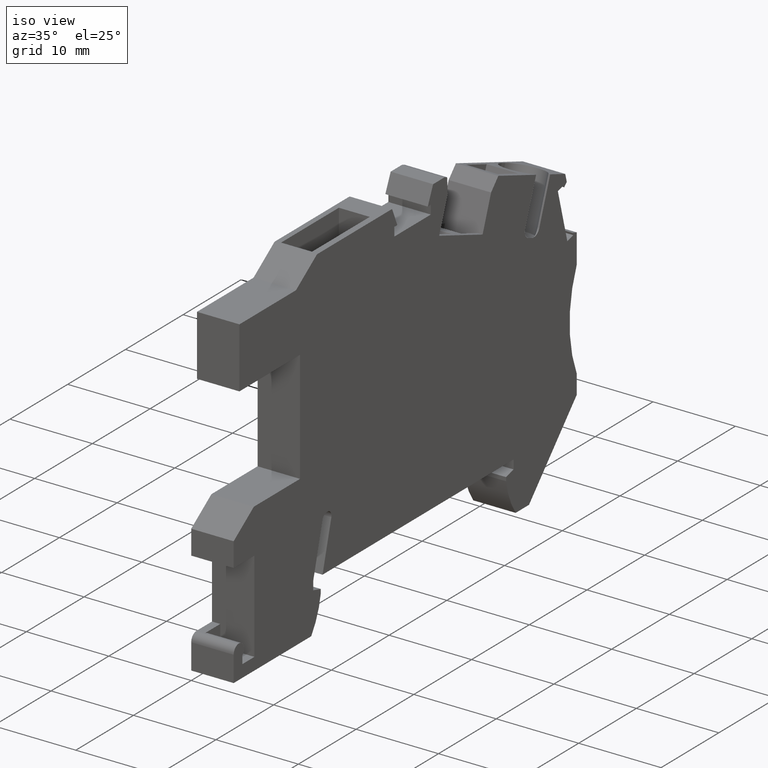
[diagram: clean part render]
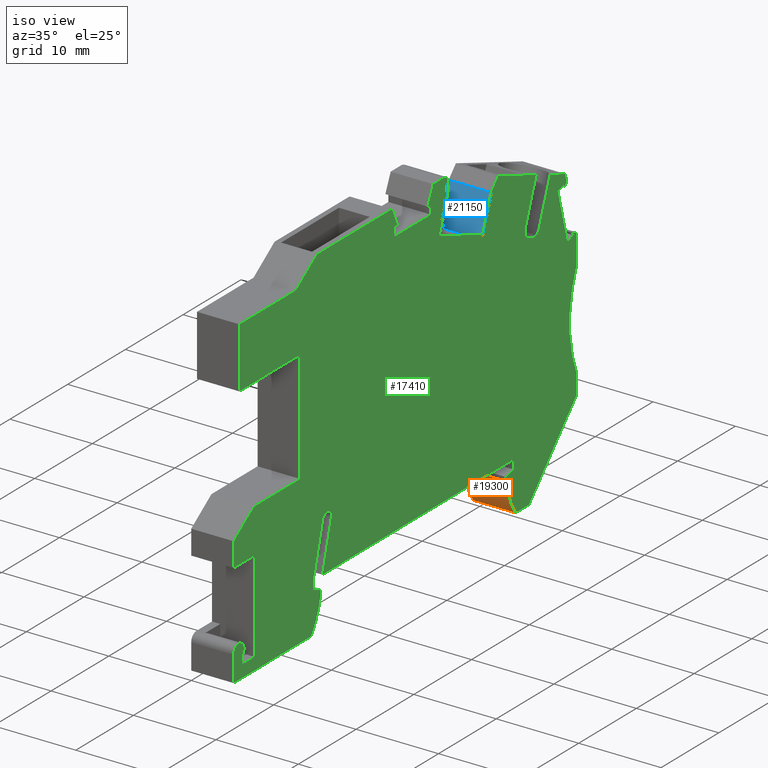
[diagram: same view with three faces highlighted in distinct colors, each labeled with its STEP entity id]
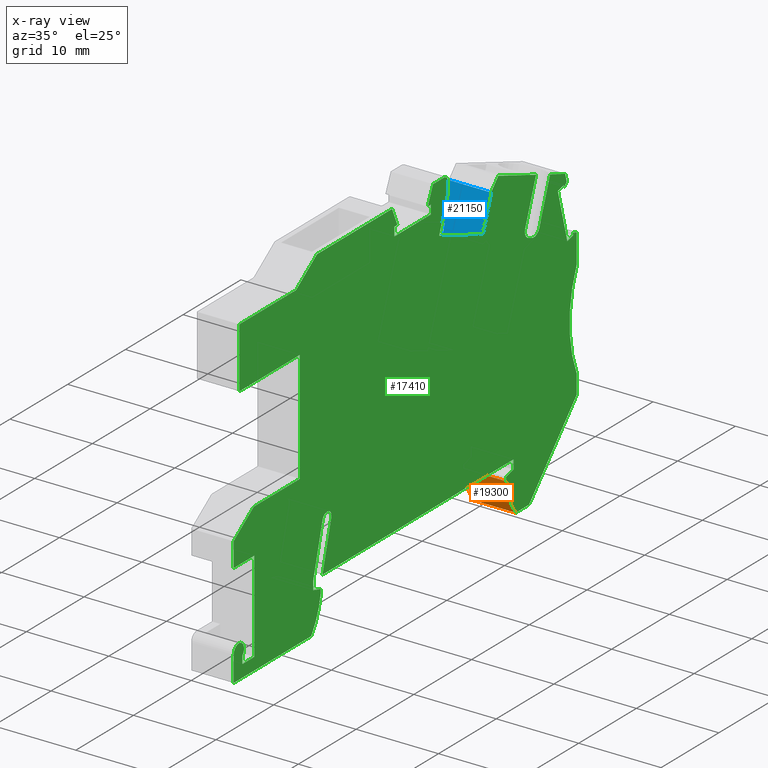
[diagram: x-ray of the same camera — body ghosted, the three highlighted faces saturated]
A machine part, iso view with three faces highlighted in distinct colors.
The next image is the same camera in x-ray (body ghosted, the three faces saturated) — at least one of them is partly hidden behind the body in this view.
Their STEP definitions:

[orange] entity #19300 — the highlighted cylindrical surface (partial cylindrical patch) has radius 9.5 mm, axis along (-1, -0, 0).
#9630=CARTESIAN_POINT('',(51.9625327047195,4.2968278815814,
-5.14999999999817));
#9640=VERTEX_POINT('',#9630);
#9810=CARTESIAN_POINT('',(51.9625327047195,4.2968278815814,
-1.4432899320127E-14));
#9820=VERTEX_POINT('',#9810);
#9850=CARTESIAN_POINT('',(51.9625327047195,4.2968278815814,
2.99999998578915E-6));
#9860=DIRECTION('',(0.,0.,-1.));
#9870=VECTOR('',#9860,1.);
#9880=LINE('',#9850,#9870);
#9890=EDGE_CURVE('',#9820,#9640,#9880,.T.);
#16840=CARTESIAN_POINT('',(54.1087751513737,0.429563033614413,
-1.4432899320127E-14));
#16850=VERTEX_POINT('',#16840);
#16880=CARTESIAN_POINT('',(61.1139937057468,6.84648698559079,
-1.4432899320127E-14));
#16890=DIRECTION('',(0.,0.,-1.));
#16900=DIRECTION('',(-0.992546151641369,-0.121869343404765,0.));
#16910=AXIS2_PLACEMENT_3D('',#16880,#16890,#16900);
#16920=CIRCLE('',#16910,9.499999999999);
#16930=EDGE_CURVE('',#16850,#9820,#16920,.T.);
#19060=CARTESIAN_POINT('',(61.1139937057468,6.84648698559079,
-1.4210854715202E-14));
#19070=DIRECTION('',(0.,0.,-1.));
#19080=DIRECTION('',(-0.992546151641369,-0.121869343404765,0.));
#19090=AXIS2_PLACEMENT_3D('',#19060,#19070,#19080);
#19100=CYLINDRICAL_SURFACE('',#19090,9.499999999999);
#19110=CARTESIAN_POINT('',(54.1087751513737,0.429563033614408,
-1.4210854715202E-14));
#19120=DIRECTION('',(0.,0.,-1.));
#19130=VECTOR('',#19120,1.);
#19140=LINE('',#19110,#19130);
#19150=CARTESIAN_POINT('',(54.1087751513737,0.429563033614408,
-5.1499999999979));
#19160=VERTEX_POINT('',#19150);
#19170=EDGE_CURVE('',#16850,#19160,#19140,.T.);
#19180=ORIENTED_EDGE('',*,*,#19170,.F.);
#19190=CARTESIAN_POINT('',(61.1139937057468,6.84648698559079,
-5.14999999999781));
#19200=DIRECTION('',(0.,0.,-1.));
#19210=DIRECTION('',(-0.992546151641369,-0.121869343404765,0.));
#19220=AXIS2_PLACEMENT_3D('',#19190,#19200,#19210);
#19230=CIRCLE('',#19220,9.499999999999);
#19240=EDGE_CURVE('',#19160,#9640,#19230,.T.);
#19250=ORIENTED_EDGE('',*,*,#19240,.F.);
#19260=ORIENTED_EDGE('',*,*,#9890,.T.);
#19270=ORIENTED_EDGE('',*,*,#16930,.T.);
#19280=EDGE_LOOP('',(#19270,#19260,#19250,#19180));
#19290=FACE_OUTER_BOUND('',#19280,.T.);
#19300=ADVANCED_FACE('',(#19290),#19100,.T.);

[blue] entity #21150 — the highlighted planar face has unit normal (0, -0.9397, 0.342).
#10580=CARTESIAN_POINT('',(41.738871458043,20.502719257122,
-0.574999999998905));
#10590=VERTEX_POINT('',#10580);
#10620=CARTESIAN_POINT('',(44.4382841101739,32.1951600345438,
-0.57499999999905));
#10630=DIRECTION('',(-0.224951054344241,-0.974370064785149,
1.21223859372387E-14));
#10640=VECTOR('',#10630,1.);
#10650=LINE('',#10620,#10640);
#10660=CARTESIAN_POINT('',(44.4382841101583,32.1951600345474,
-0.57499999999905));
#10670=VERTEX_POINT('',#10660);
#10680=EDGE_CURVE('',#10670,#10590,#10650,.T.);
#13390=CARTESIAN_POINT('',(41.7388714580432,20.5027192571219,
-4.5749999999989));
#13400=VERTEX_POINT('',#13390);
#13430=CARTESIAN_POINT('',(41.738871458043,20.502719257122,
1.11954889803201E-12));
#13440=DIRECTION('',(-4.59041454192093E-14,2.30390615017623E-14,1.));
#13450=VECTOR('',#13440,1.);
#13460=LINE('',#13430,#13450);
#13470=EDGE_CURVE('',#13400,#10590,#13460,.T.);
#15590=CARTESIAN_POINT('',(44.4382841101605,32.1951600345564,
-1.4432899320127E-14));
#15600=VERTEX_POINT('',#15590);
#15630=CARTESIAN_POINT('',(37.0054457499842,0.,-1.4432899320127E-14));
#15640=DIRECTION('',(0.224951054343866,0.974370064785235,0.));
#15650=VECTOR('',#15640,1.);
#15660=LINE('',#15630,#15650);
#15670=CARTESIAN_POINT('',(45.4055736438387,36.3849513131316,
-1.4432899320127E-14));
#15680=VERTEX_POINT('',#15670);
#15690=EDGE_CURVE('',#15600,#15680,#15660,.T.);
#19980=CARTESIAN_POINT('',(44.4382841101741,32.1951600345437,
-4.57499999999904));
#19990=DIRECTION('',(-0.224951054344241,-0.974370064785149,
1.21223859372387E-14));
#20000=VECTOR('',#19990,1.);
#20010=LINE('',#19980,#20000);
#20020=CARTESIAN_POINT('',(44.4382841101583,32.1951600345473,
-4.57499999999904));
#20030=VERTEX_POINT('',#20020);
#20040=EDGE_CURVE('',#20030,#13400,#20010,.T.);
#20800=CARTESIAN_POINT('',(41.3682988384536,18.8975928957509,
-1.4210854715202E-14));
#20810=DIRECTION('',(-0.974370064785235,0.224951054343866,0.));
#20820=DIRECTION('',(0.224951054343866,0.974370064785235,0.));
#20830=AXIS2_PLACEMENT_3D('',#20800,#20810,#20820);
#20840=PLANE('',#20830);
#20850=CARTESIAN_POINT('',(37.0054457499842,0.,-5.14999999999876));
#20860=DIRECTION('',(0.224951054343866,0.974370064785235,
-1.21291865440298E-14));
#20870=VECTOR('',#20860,1.);
#20880=LINE('',#20850,#20870);
#20890=CARTESIAN_POINT('',(44.4382841101605,32.1951600345564,
-5.14999999999916));
#20900=VERTEX_POINT('',#20890);
#20910=CARTESIAN_POINT('',(45.4055736438386,36.3849513131314,
-5.14999999999921));
#20920=VERTEX_POINT('',#20910);
#20930=EDGE_CURVE('',#20900,#20920,#20880,.T.);
#20940=ORIENTED_EDGE('',*,*,#20930,.F.);
#20950=CARTESIAN_POINT('',(45.4055736438386,36.3849513131314,
-3.82500000000001));
#20960=DIRECTION('',(0.,0.,1.));
#20970=VECTOR('',#20960,1.);
#20980=LINE('',#20950,#20970);
#20990=EDGE_CURVE('',#20920,#15680,#20980,.T.);
#21000=ORIENTED_EDGE('',*,*,#20990,.F.);
#21010=ORIENTED_EDGE('',*,*,#15690,.T.);
#21020=CARTESIAN_POINT('',(44.4382841101604,32.1951600345564,0.));
#21030=DIRECTION('',(0.,0.,-1.));
#21040=VECTOR('',#21030,1.);
#21050=LINE('',#21020,#21040);
#21060=EDGE_CURVE('',#15600,#10670,#21050,.T.);
#21070=ORIENTED_EDGE('',*,*,#21060,.F.);
#21080=ORIENTED_EDGE('',*,*,#10680,.F.);
#21090=ORIENTED_EDGE('',*,*,#13470,.T.);
#21100=ORIENTED_EDGE('',*,*,#20040,.T.);
#21110=EDGE_CURVE('',#20030,#20900,#21050,.T.);
#21120=ORIENTED_EDGE('',*,*,#21110,.F.);
#21130=EDGE_LOOP('',(#21120,#21100,#21090,#21080,#21070,#21010,#21000,
#20940));
#21140=FACE_OUTER_BOUND('',#21130,.T.);
#21150=ADVANCED_FACE('',(#21140),#20840,.T.);

[green] entity #17410 — the highlighted planar face has unit normal (1, 0, -0).
#680=CARTESIAN_POINT('',(19.4454516024276,8.27066819740167,
-1.4432899320127E-14));
#690=VERTEX_POINT('',#680);
#720=CARTESIAN_POINT('',(20.2376660574208,8.15932971663343,
-1.4432899320127E-14));
#730=DIRECTION('',(0.,0.,1.));
#740=DIRECTION('',(1.,0.,0.));
#750=AXIS2_PLACEMENT_3D('',#720,#730,#740);
#760=CIRCLE('',#750,0.8);
#770=CARTESIAN_POINT('',(20.1401705826967,8.95336663794648,
-1.4432899320127E-14));
#780=VERTEX_POINT('',#770);
#790=EDGE_CURVE('',#780,#690,#760,.T.);
#1630=CARTESIAN_POINT('',(1.85975388122069,33.2566976009745,
-1.4432899320127E-14));
#1640=VERTEX_POINT('',#1630);
#1670=CARTESIAN_POINT('',(5.94316289323702,0.,-1.4432899320127E-14));
#1680=DIRECTION('',(-0.121869343405147,0.992546151641322,0.));
#1690=VECTOR('',#1680,1.);
#1700=LINE('',#1670,#1690);
#1710=CARTESIAN_POINT('',(2.75549355524854,25.9614833864106,
-1.4432899320127E-14));
#1720=VERTEX_POINT('',#1710);
#1730=EDGE_CURVE('',#1720,#1640,#1700,.T.);
#1960=CARTESIAN_POINT('',(0.,33.4766904096144,-1.4432899320127E-14));
#1970=DIRECTION('',(-0.992546151641322,-0.121869343405147,0.));
#1980=VECTOR('',#1970,1.);
#1990=LINE('',#1960,#1980);
#2000=CARTESIAN_POINT('',(34.7208337772103,37.739872739132,
-1.4432899320127E-14));
#2010=VERTEX_POINT('',#2000);
#2020=CARTESIAN_POINT('',(34.1968701852491,37.6755380995639,
-1.4432899320127E-14));
#2030=VERTEX_POINT('',#2020);
#2040=EDGE_CURVE('',#2010,#2030,#1990,.T.);
#2470=CARTESIAN_POINT('',(63.5347758791042,10.5659563601578,
-1.4432899320127E-14));
#2480=VERTEX_POINT('',#2470);
#2530=CARTESIAN_POINT('',(64.8321121913054,0.,-1.4432899320127E-14));
#2540=DIRECTION('',(0.121869343405147,-0.992546151641322,0.));
#2550=VECTOR('',#2540,1.);
#2560=LINE('',#2530,#2550);
#2570=CARTESIAN_POINT('',(63.2559507241477,12.836805014957,
-1.4432899320127E-14));
#2580=VERTEX_POINT('',#2570);
#2590=EDGE_CURVE('',#2580,#2480,#2560,.T.);
#2940=CARTESIAN_POINT('',(28.9669429600424,37.0333837816599,
-1.4432899320127E-14));
#2950=VERTEX_POINT('',#2940);
#3000=CARTESIAN_POINT('',(50.9761572099248,0.,-1.4432899320127E-14));
#3010=DIRECTION('',(-0.510892985900413,0.85964432002879,0.));
#3020=VECTOR('',#3010,1.);
#3030=LINE('',#3000,#3020);
#3040=CARTESIAN_POINT('',(27.7922503537223,39.0099578483857,
-1.4432899320127E-14));
#3050=VERTEX_POINT('',#3040);
#3060=EDGE_CURVE('',#2950,#3050,#3030,.T.);
#3410=CARTESIAN_POINT('',(6.92003386756381,-3.85322110628908,
-1.4432899320127E-14));
#3420=VERTEX_POINT('',#3410);
#3590=CARTESIAN_POINT('',(9.00438078600889,-3.5972954851393,
-1.4432899320127E-14));
#3600=VERTEX_POINT('',#3590);
#3630=CARTESIAN_POINT('',(0.,-4.70289442614842,-1.4432899320127E-14));
#3640=DIRECTION('',(-0.992546151641369,-0.121869343404765,0.));
#3650=VECTOR('',#3640,1.);
#3660=LINE('',#3630,#3650);
#3670=EDGE_CURVE('',#3600,#3420,#3660,.T.);
#3980=CARTESIAN_POINT('',(61.7935186032859,24.7473588346529,
-1.4432899320127E-14));
#3990=VERTEX_POINT('',#3980);
#4020=CARTESIAN_POINT('',(64.8321121913054,0.,-1.4432899320127E-14));
#4030=DIRECTION('',(0.121869343405147,-0.992546151641322,0.));
#4040=VECTOR('',#4030,1.);
#4050=LINE('',#4020,#4040);
#4060=CARTESIAN_POINT('',(61.3659941005762,28.2292664911685,
-1.4432899320127E-14));
#4070=VERTEX_POINT('',#4060);
#4080=EDGE_CURVE('',#4070,#3990,#4050,.T.);
#4350=CARTESIAN_POINT('',(53.1553472271283,5.24929494933183,
-1.4432899320127E-14));
#4360=VERTEX_POINT('',#4350);
#4530=CARTESIAN_POINT('',(53.0212909493828,6.34109571613718,
-1.4432899320127E-14));
#4540=VERTEX_POINT('',#4530);
#4570=CARTESIAN_POINT('',(53.7998796025319,0.,-1.4432899320127E-14));
#4580=DIRECTION('',(-0.121869343405147,0.992546151641322,0.));
#4590=VECTOR('',#4580,1.);
#4600=LINE('',#4570,#4590);
#4610=EDGE_CURVE('',#4360,#4540,#4600,.T.);
#4780=CARTESIAN_POINT('',(0.,35.5974985922003,-1.4432899320127E-14));
#4790=DIRECTION('',(0.992546151641322,0.121869343405147,0.));
#4800=VECTOR('',#4790,1.);
#4810=LINE('',#4780,#4800);
#4820=CARTESIAN_POINT('',(14.8905715021893,37.4258308756899,
-1.4432899320127E-14));
#4830=VERTEX_POINT('',#4820);
#4840=EDGE_CURVE('',#4830,#3050,#4810,.T.);
#5560=CARTESIAN_POINT('',(3.7190388891674,9.90852733978212,
-1.4432899320127E-14));
#5570=VERTEX_POINT('',#5560);
#5720=CARTESIAN_POINT('',(6.89428200466091,12.7675290826013,
-1.4432899320127E-14));
#5730=VERTEX_POINT('',#5720);
#5760=CARTESIAN_POINT('',(0.,6.55988968307486,-1.4432899320127E-14));
#5770=DIRECTION('',(0.743144825477395,0.669130606358858,0.));
#5780=VECTOR('',#5770,1.);
#5790=LINE('',#5760,#5780);
#5800=EDGE_CURVE('',#5570,#5730,#5790,.T.);
#6110=CARTESIAN_POINT('',(58.4013126977542,33.9511437820972,
-1.4432899320127E-14));
#6120=VERTEX_POINT('',#6110);
#6150=CARTESIAN_POINT('',(72.1184651827974,0.,-1.4432899320127E-14));
#6160=DIRECTION('',(0.374606593415343,-0.927183854567017,0.));
#6170=VECTOR('',#6160,1.);
#6180=LINE('',#6150,#6170);
#6190=CARTESIAN_POINT('',(58.5033209280686,33.6986645523051,
-1.4432899320127E-14));
#6200=VERTEX_POINT('',#6190);
#6210=EDGE_CURVE('',#6120,#6200,#6180,.T.);
#6440=CARTESIAN_POINT('',(72.6900885964576,0.,-1.4432899320127E-14));
#6450=DIRECTION('',(0.374606593416301,-0.92718385456663,0.));
#6460=VECTOR('',#6450,1.);
#6470=LINE('',#6440,#6460);
#6480=CARTESIAN_POINT('',(58.5067372954408,35.1050263424892,
-1.4432899320127E-14));
#6490=VERTEX_POINT('',#6480);
#6500=CARTESIAN_POINT('',(58.8801003856887,34.1809202662668,
-1.4432899320127E-14));
#6510=VERTEX_POINT('',#6500);
#6520=EDGE_CURVE('',#6490,#6510,#6470,.T.);
#7030=CARTESIAN_POINT('',(14.8346512177917,13.7424838298426,
-1.4432899320127E-14));
#7040=VERTEX_POINT('',#7030);
#7070=CARTESIAN_POINT('',(0.,11.9210176939183,-1.4432899320127E-14));
#7080=DIRECTION('',(0.992546151641322,0.121869343405147,0.));
#7090=VECTOR('',#7080,1.);
#7100=LINE('',#7070,#7090);
#7110=EDGE_CURVE('',#5730,#7040,#7100,.T.);
#7330=CARTESIAN_POINT('',(28.442979368079,36.9690491420914,
-1.4432899320127E-14));
#7340=VERTEX_POINT('',#7330);
#7510=CARTESIAN_POINT('',(28.5733795655224,35.9070247598364,
-1.4432899320127E-14));
#7520=VERTEX_POINT('',#7510);
#7550=CARTESIAN_POINT('',(32.9822078339886,0.,-1.4432899320127E-14));
#7560=DIRECTION('',(-0.121869343405147,0.992546151641322,0.));
#7570=VECTOR('',#7560,1.);
#7580=LINE('',#7550,#7570);
#7590=EDGE_CURVE('',#7520,#7340,#7580,.T.);
#7840=CARTESIAN_POINT('',(76.1699882756172,20.4675083979509,
-1.4210854715202E-14));
#7850=DIRECTION('',(0.,0.,1.));
#7860=DIRECTION('',(0.992546151641322,0.121869343405147,0.));
#7870=AXIS2_PLACEMENT_3D('',#7840,#7850,#7860);
#7880=CIRCLE('',#7870,15.);
#7890=EDGE_CURVE('',#3990,#2580,#7880,.T.);
#8160=CARTESIAN_POINT('',(39.3547074800161,0.,-1.4432899320127E-14));
#8170=DIRECTION('',(0.121869343405147,-0.992546151641322,0.));
#8180=VECTOR('',#8170,1.);
#8190=LINE('',#8160,#8180);
#8200=CARTESIAN_POINT('',(34.851233974654,36.6778483568737,
-1.4432899320127E-14));
#8210=VERTEX_POINT('',#8200);
#8220=EDGE_CURVE('',#2010,#8210,#8190,.T.);
#8450=CARTESIAN_POINT('',(0.,-0.169100211587931,-1.4432899320127E-14));
#8460=DIRECTION('',(-0.992546151641322,-0.121869343405147,0.));
#8470=VECTOR('',#8460,1.);
#8480=LINE('',#8450,#8470);
#8490=CARTESIAN_POINT('',(20.1680133300548,2.30722044942677,
-1.4432899320127E-14));
#8500=VERTEX_POINT('',#8490);
#8510=EDGE_CURVE('',#4540,#8500,#8480,.T.);
#8960=CARTESIAN_POINT('',(20.9919967246766,8.17016694726421,
-1.4432899320127E-14));
#8970=VERTEX_POINT('',#8960);
#9000=CARTESIAN_POINT('',(19.8437546422497,0.,-1.4432899320127E-14));
#9010=DIRECTION('',(0.139173100960126,0.990268068741562,0.));
#9020=VECTOR('',#9010,1.);
#9030=LINE('',#9000,#9020);
#9040=EDGE_CURVE('',#8500,#8970,#9030,.T.);
#9210=CARTESIAN_POINT('',(0.,6.48046463644048,-1.4432899320127E-14));
#9220=DIRECTION('',(0.992546151641322,0.121869343405147,0.));
#9230=VECTOR('',#9220,1.);
#9240=LINE('',#9210,#9230);
#9250=CARTESIAN_POINT('',(20.213500536174,8.96237042408523,
-1.4432899320127E-14));
#9260=VERTEX_POINT('',#9250);
#9270=EDGE_CURVE('',#780,#9260,#9240,.T.);
#9730=CARTESIAN_POINT('',(51.9074884597862,4.7451272811874,
-1.4432899320127E-14));
#9740=VERTEX_POINT('',#9730);
#9770=CARTESIAN_POINT('',(52.4901168294319,0.,-1.4432899320127E-14));
#9780=DIRECTION('',(-0.121869343404462,0.992546151641406,0.));
#9790=VECTOR('',#9780,1.);
#9800=LINE('',#9770,#9790);
#9810=CARTESIAN_POINT('',(51.9625327047195,4.2968278815814,
-1.4432899320127E-14));
#9820=VERTEX_POINT('',#9810);
#9830=EDGE_CURVE('',#9820,#9740,#9800,.T.);
#10060=CARTESIAN_POINT('',(4.93565306777697,0.,-1.4432899320127E-14));
#10070=DIRECTION('',(0.121869343405147,-0.992546151641322,0.));
#10080=VECTOR('',#10070,1.);
#10090=LINE('',#10060,#10080);
#10100=CARTESIAN_POINT('',(4.07846492830384,6.98123716182017,
-1.4432899320127E-14));
#10110=VERTEX_POINT('',#10100);
#10120=EDGE_CURVE('',#5570,#10110,#10090,.T.);
#10950=CARTESIAN_POINT('',(6.80679535898333,-2.93096746342717,
-1.4432899320127E-14));
#10960=VERTEX_POINT('',#10950);
#11080=CARTESIAN_POINT('',(6.44691780595952,0.,-1.4432899320127E-14));
#11090=DIRECTION('',(-0.121869343406868,0.992546151641111,0.));
#11100=VECTOR('',#11090,1.);
#11110=LINE('',#11080,#11100);
#11120=EDGE_CURVE('',#3420,#10960,#11110,.T.);
#11350=CARTESIAN_POINT('',(18.5799394874281,2.11222949998685,
-1.4432899320127E-14));
#11360=VERTEX_POINT('',#11350);
#11510=CARTESIAN_POINT('',(18.7139957651748,1.02042873317326,
-1.4432899320127E-14));
#11520=VERTEX_POINT('',#11510);
#11550=CARTESIAN_POINT('',(18.8392886591102,0.,-1.4432899320127E-14));
#11560=DIRECTION('',(0.121869343405147,-0.992546151641322,0.));
#11570=VECTOR('',#11560,1.);
#11580=LINE('',#11550,#11570);
#11590=EDGE_CURVE('',#11360,#11520,#11580,.T.);
#11840=CARTESIAN_POINT('',(0.,-16.226859373798,-1.4432899320127E-14));
#11850=DIRECTION('',(0.927183854566812,0.374606593415851,0.));
#11860=VECTOR('',#11850,1.);
#11870=LINE('',#11840,#11860);
#11880=EDGE_CURVE('',#9740,#4360,#11870,.T.);
#12050=CARTESIAN_POINT('',(28.7950128875799,0.,-1.4432899320127E-14));
#12060=DIRECTION('',(-0.224951054346894,-0.974370064784536,0.));
#12070=VECTOR('',#12060,1.);
#12080=LINE('',#12050,#12070);
#12090=CARTESIAN_POINT('',(37.610613125586,38.1845597477154,
-1.4432899320127E-14));
#12100=VERTEX_POINT('',#12090);
#12110=CARTESIAN_POINT('',(36.6433235919299,33.9947684692956,
-1.4432899320127E-14));
#12120=VERTEX_POINT('',#12110);
#12130=EDGE_CURVE('',#12100,#12120,#12080,.T.);
#12940=CARTESIAN_POINT('',(60.7706994011096,28.0867059019636,
-1.4432899320127E-14));
#12950=VERTEX_POINT('',#12940);
#12980=CARTESIAN_POINT('',(0.,3.53374958153352,-1.4432899320127E-14));
#12990=DIRECTION('',(-0.927183854566591,-0.374606593416397,0.));
#13000=VECTOR('',#12990,1.);
#13010=LINE('',#12980,#13000);
#13020=CARTESIAN_POINT('',(59.7786126767233,27.6858768470081,
-1.4432899320127E-14));
#13030=VERTEX_POINT('',#13020);
#13040=EDGE_CURVE('',#12950,#13030,#13010,.T.);
#13650=CARTESIAN_POINT('',(22.876943703111,0.,-1.4432899320127E-14));
#13660=DIRECTION('',(-0.287750497358596,-0.957705409439605,0.));
#13670=VECTOR('',#13660,1.);
#13680=LINE('',#13650,#13670);
#13690=CARTESIAN_POINT('',(34.858492855828,39.8775833312411,
-1.4432899320127E-14));
#13700=VERTEX_POINT('',#13690);
#13710=EDGE_CURVE('',#13700,#2030,#13680,.T.);
#14040=CARTESIAN_POINT('',(70.9644330081631,0.,-1.4432899320127E-14));
#14050=DIRECTION('',(-0.374606593416089,0.927183854566716,0.));
#14060=VECTOR('',#14050,1.);
#14070=LINE('',#14040,#14060);
#14080=CARTESIAN_POINT('',(57.4092259733668,33.550314727142,
-1.4432899320127E-14));
#14090=VERTEX_POINT('',#14080);
#14100=EDGE_CURVE('',#13030,#14090,#14070,.T.);
#14360=CARTESIAN_POINT('',(49.580607,25.610812,-1.4432899320127E-14));
#14370=DIRECTION('',(0.,0.,1.));
#14380=DIRECTION('',(1.,0.,0.));
#14390=AXIS2_PLACEMENT_3D('',#14360,#14370,#14380);
#14400=PLANE('',#14390);
#14410=CARTESIAN_POINT('',(0.,-6.21415916434122,-1.4432899320127E-14));
#14420=DIRECTION('',(-0.99254615164132,-0.121869343405163,0.));
#14430=VECTOR('',#14420,1.);
#14440=LINE('',#14410,#14430);
#14450=CARTESIAN_POINT('',(18.9548874062867,-3.88679163719603,
-1.4432899320127E-14));
#14460=VERTEX_POINT('',#14450);
#14470=CARTESIAN_POINT('',(5.61401865520755,-5.52484434886076,
-1.4432899320127E-14));
#14480=VERTEX_POINT('',#14470);
#14490=EDGE_CURVE('',#14460,#14480,#14440,.T.);
#14500=ORIENTED_EDGE('',*,*,#14490,.F.);
#14510=CARTESIAN_POINT('',(4.93565306777795,0.,-1.4432899320127E-14));
#14520=DIRECTION('',(0.121869343404765,-0.992546151641369,0.));
#14530=VECTOR('',#14520,1.);
#14540=LINE('',#14510,#14530);
#14550=CARTESIAN_POINT('',(5.23622369065275,-2.44795127877226,
-1.4432899320127E-14));
#14560=VERTEX_POINT('',#14550);
#14570=EDGE_CURVE('',#14560,#14480,#14540,.T.);
#14580=ORIENTED_EDGE('',*,*,#14570,.T.);
#14590=CARTESIAN_POINT('',(6.12951522712998,-2.33826886970797,
-1.4432899320127E-14));
#14600=DIRECTION('',(0.,0.,1.));
#14610=DIRECTION('',(1.,0.,0.));
#14620=AXIS2_PLACEMENT_3D('',#14590,#14600,#14610);
#14630=CIRCLE('',#14620,0.9);
#14640=EDGE_CURVE('',#10960,#14560,#14630,.T.);
#14650=ORIENTED_EDGE('',*,*,#14640,.T.);
#14660=ORIENTED_EDGE('',*,*,#11120,.T.);
#14670=ORIENTED_EDGE('',*,*,#3670,.T.);
#14680=CARTESIAN_POINT('',(8.56268843942805,0.,-1.4432899320127E-14));
#14690=DIRECTION('',(-0.121869343405147,0.992546151641322,0.));
#14700=VECTOR('',#14690,1.);
#14710=LINE('',#14680,#14700);
#14720=CARTESIAN_POINT('',(7.65163107421184,7.41996679807859,
-1.4432899320127E-14));
#14730=VERTEX_POINT('',#14720);
#14740=EDGE_CURVE('',#3600,#14730,#14710,.T.);
#14750=ORIENTED_EDGE('',*,*,#14740,.F.);
#14760=CARTESIAN_POINT('',(0.,6.48046463644047,-1.4432899320127E-14));
#14770=DIRECTION('',(-0.992546151641322,-0.121869343405147,0.));
#14780=VECTOR('',#14770,1.);
#14790=LINE('',#14760,#14780);
#14800=EDGE_CURVE('',#14730,#10110,#14790,.T.);
#14810=ORIENTED_EDGE('',*,*,#14800,.F.);
#14820=ORIENTED_EDGE('',*,*,#10120,.T.);
#14830=ORIENTED_EDGE('',*,*,#5800,.F.);
#14840=ORIENTED_EDGE('',*,*,#7110,.F.);
#14850=CARTESIAN_POINT('',(16.5220160605542,0.,-1.4432899320127E-14));
#14860=DIRECTION('',(-0.121869343405148,0.992546151641322,0.));
#14870=VECTOR('',#14860,1.);
#14880=LINE('',#14850,#14870);
#14890=CARTESIAN_POINT('',(13.1772281474815,27.2411114921645,
-1.4432899320127E-14));
#14900=VERTEX_POINT('',#14890);
#14910=EDGE_CURVE('',#7040,#14900,#14880,.T.);
#14920=ORIENTED_EDGE('',*,*,#14910,.F.);
#14930=CARTESIAN_POINT('',(0.,25.6231513201586,-1.4432899320127E-14));
#14940=DIRECTION('',(0.992546151641322,0.121869343405147,0.));
#14950=VECTOR('',#14940,1.);
#14960=LINE('',#14930,#14950);
#14970=EDGE_CURVE('',#1720,#14900,#14960,.T.);
#14980=ORIENTED_EDGE('',*,*,#14970,.T.);
#14990=ORIENTED_EDGE('',*,*,#1730,.F.);
#15000=CARTESIAN_POINT('',(0.,33.0283485372812,-1.4432899320127E-14));
#15010=DIRECTION('',(0.992546151641322,0.121869343405147,0.));
#15020=VECTOR('',#15010,1.);
#15030=LINE('',#15000,#15020);
#15040=CARTESIAN_POINT('',(11.5867061673052,34.4510171663448,
-1.4432899320127E-14));
#15050=VERTEX_POINT('',#15040);
#15060=EDGE_CURVE('',#1640,#15050,#15030,.T.);
#15070=ORIENTED_EDGE('',*,*,#15060,.F.);
#15080=CARTESIAN_POINT('',(0.,24.0183000732125,-1.4432899320127E-14));
#15090=DIRECTION('',(0.743144825477394,0.669130606358858,0.));
#15100=VECTOR('',#15090,1.);
#15110=LINE('',#15080,#15100);
#15120=EDGE_CURVE('',#15050,#4830,#15110,.T.);
#15130=ORIENTED_EDGE('',*,*,#15120,.F.);
#15140=ORIENTED_EDGE('',*,*,#4840,.F.);
#15150=ORIENTED_EDGE('',*,*,#3060,.T.);
#15160=CARTESIAN_POINT('',(0.,33.4766904096115,-1.4432899320127E-14));
#15170=DIRECTION('',(-0.992546151641322,-0.121869343405147,0.));
#15180=VECTOR('',#15170,1.);
#15190=LINE('',#15160,#15180);
#15200=EDGE_CURVE('',#2950,#7340,#15190,.T.);
#15210=ORIENTED_EDGE('',*,*,#15200,.F.);
#15220=ORIENTED_EDGE('',*,*,#7590,.T.);
#15230=CARTESIAN_POINT('',(0.,32.3986548963715,-1.4432899320127E-14));
#15240=DIRECTION('',(0.992546151641322,0.121869343405147,0.));
#15250=VECTOR('',#15240,1.);
#15260=LINE('',#15230,#15250);
#15270=EDGE_CURVE('',#7520,#8210,#15260,.T.);
#15280=ORIENTED_EDGE('',*,*,#15270,.F.);
#15290=ORIENTED_EDGE('',*,*,#8220,.T.);
#15300=ORIENTED_EDGE('',*,*,#2040,.F.);
#15310=ORIENTED_EDGE('',*,*,#13710,.T.);
#15320=CARTESIAN_POINT('',(0.,35.5974985922012,-1.4432899320127E-14));
#15330=DIRECTION('',(0.992546151641322,0.121869343405147,0.));
#15340=VECTOR('',#15330,1.);
#15350=LINE('',#15320,#15340);
#15360=CARTESIAN_POINT('',(36.8012754989187,40.1161270450027,
-1.4432899320127E-14));
#15370=VERTEX_POINT('',#15360);
#15380=EDGE_CURVE('',#13700,#15370,#15350,.T.);
#15390=ORIENTED_EDGE('',*,*,#15380,.F.);
#15400=CARTESIAN_POINT('',(0.,48.6123709505563,-1.4432899320127E-14));
#15410=DIRECTION('',(0.974370064785208,-0.224951054343983,0.));
#15420=VECTOR('',#15410,1.);
#15430=LINE('',#15400,#15420);
#15440=CARTESIAN_POINT('',(37.292945299917,40.0026161274151,
-1.4432899320127E-14));
#15450=VERTEX_POINT('',#15440);
#15460=EDGE_CURVE('',#15370,#15450,#15430,.T.);
#15470=ORIENTED_EDGE('',*,*,#15460,.F.);
#15480=CARTESIAN_POINT('',(44.2825767701831,0.,-1.4432899320127E-14));
#15490=DIRECTION('',(0.172121645908491,-0.985075702172047,0.));
#15500=VECTOR('',#15490,1.);
#15510=LINE('',#15480,#15500);
#15520=EDGE_CURVE('',#15450,#12100,#15510,.T.);
#15530=ORIENTED_EDGE('',*,*,#15520,.F.);
#15540=ORIENTED_EDGE('',*,*,#12130,.F.);
#15550=CARTESIAN_POINT('',(0.,42.454546303793,-1.4432899320127E-14));
#15560=DIRECTION('',(-0.974370064785235,0.224951054343865,0.));
#15570=VECTOR('',#15560,1.);
#15580=LINE('',#15550,#15570);
#15590=CARTESIAN_POINT('',(44.4382841101605,32.1951600345564,
-1.4432899320127E-14));
#15600=VERTEX_POINT('',#15590);
#15610=EDGE_CURVE('',#15600,#12120,#15580,.T.);
#15620=ORIENTED_EDGE('',*,*,#15610,.T.);
#15630=CARTESIAN_POINT('',(37.0054457499842,0.,-1.4432899320127E-14));
#15640=DIRECTION('',(0.224951054343866,0.974370064785235,0.));
#15650=VECTOR('',#15640,1.);
#15660=LINE('',#15630,#15650);
#15670=CARTESIAN_POINT('',(45.4055736438387,36.3849513131316,
-1.4432899320127E-14));
#15680=VERTEX_POINT('',#15670);
#15690=EDGE_CURVE('',#15600,#15680,#15660,.T.);
#15700=ORIENTED_EDGE('',*,*,#15690,.F.);
#15710=CARTESIAN_POINT('',(19.0564215082522,0.,-1.4432899320127E-14));
#15720=DIRECTION('',(0.586530675816981,0.809927012962079,0.));
#15730=VECTOR('',#15720,1.);
#15740=LINE('',#15710,#15730);
#15750=CARTESIAN_POINT('',(46.4880750542452,37.8797531538648,
-1.4432899320127E-14));
#15760=VERTEX_POINT('',#15750);
#15770=EDGE_CURVE('',#15680,#15760,#15740,.T.);
#15780=ORIENTED_EDGE('',*,*,#15770,.F.);
#15790=CARTESIAN_POINT('',(0.,48.6123709505544,-1.4432899320127E-14));
#15800=DIRECTION('',(-0.974370064785205,0.224951054343995,0.));
#15810=VECTOR('',#15800,1.);
#15820=LINE('',#15790,#15810);
#15830=CARTESIAN_POINT('',(53.2662806834669,36.3148810811683,
-1.4432899320127E-14));
#15840=VERTEX_POINT('',#15830);
#15850=EDGE_CURVE('',#15840,#15760,#15820,.T.);
#15860=ORIENTED_EDGE('',*,*,#15850,.T.);
#15870=CARTESIAN_POINT('',(44.8823297773074,0.,-1.4432899320127E-14));
#15880=DIRECTION('',(-0.224951054344127,-0.974370064785175,0.));
#15890=VECTOR('',#15880,1.);
#15900=LINE('',#15870,#15890);
#15910=CARTESIAN_POINT('',(52.029049884573,30.9558457248446,
-1.4432899320127E-14));
#15920=VERTEX_POINT('',#15910);
#15930=EDGE_CURVE('',#15840,#15920,#15900,.T.);
#15940=ORIENTED_EDGE('',*,*,#15930,.F.);
#15950=CARTESIAN_POINT('',(53.0034199493582,30.7308946705003,
-1.4432899320127E-14));
#15960=DIRECTION('',(4.59136596323955E-14,-2.30558228825359E-14,-1.));
#15970=DIRECTION('',(-0.994521895368233,0.104528463268037,
-4.80721295361934E-14));
#15980=AXIS2_PLACEMENT_3D('',#15950,#15960,#15970);
#15990=CIRCLE('',#15980,1.);
#16000=CARTESIAN_POINT('',(52.7784688950141,29.7565246057151,
1.34970139754241E-12));
#16010=VERTEX_POINT('',#16000);
#16020=EDGE_CURVE('',#16010,#15920,#15990,.T.);
#16030=ORIENTED_EDGE('',*,*,#16020,.T.);
#16040=CARTESIAN_POINT('',(0.,41.9413942499075,-1.4432899320127E-14));
#16050=DIRECTION('',(0.974370064785129,-0.224951054344325,0.));
#16060=VECTOR('',#16050,1.);
#16070=LINE('',#16040,#16060);
#16080=CARTESIAN_POINT('',(53.3630909338835,29.6215539731064,
-1.46758162156196E-14));
#16090=VERTEX_POINT('',#16080);
#16100=EDGE_CURVE('',#16010,#16090,#16070,.T.);
#16110=ORIENTED_EDGE('',*,*,#16100,.F.);
#16120=CARTESIAN_POINT('',(53.5880419882293,30.5959240378938,
-1.4432899320127E-14));
#16130=DIRECTION('',(4.59136596323955E-14,-2.30558228825359E-14,-1.));
#16140=DIRECTION('',(-0.994521895368233,0.104528463268037,
-4.80721295361934E-14));
#16150=AXIS2_PLACEMENT_3D('',#16120,#16130,#16140);
#16160=CIRCLE('',#16150,1.);
#16170=CARTESIAN_POINT('',(54.5624120530145,30.3709729835497,
-1.4432899320127E-14));
#16180=VERTEX_POINT('',#16170);
#16190=EDGE_CURVE('',#16180,#16090,#16160,.T.);
#16200=ORIENTED_EDGE('',*,*,#16190,.T.);
#16210=CARTESIAN_POINT('',(47.5507204575704,0.,-1.4432899320127E-14));
#16220=DIRECTION('',(0.224951054344127,0.974370064785175,0.));
#16230=VECTOR('',#16220,1.);
#16240=LINE('',#16210,#16230);
#16250=CARTESIAN_POINT('',(55.7996428519085,35.7300083398739,
-1.4432899320127E-14));
#16260=VERTEX_POINT('',#16250);
#16270=EDGE_CURVE('',#16180,#16260,#16240,.T.);
#16280=ORIENTED_EDGE('',*,*,#16270,.F.);
#16290=EDGE_CURVE('',#6490,#16260,#15820,.T.);
#16300=ORIENTED_EDGE('',*,*,#16290,.T.);
#16310=ORIENTED_EDGE('',*,*,#6520,.F.);
#16320=CARTESIAN_POINT('',(32.1750386808079,0.,-1.4432899320127E-14));
#16330=DIRECTION('',(0.615661475326723,0.78801075360589,0.));
#16340=VECTOR('',#16330,1.);
#16350=LINE('',#16320,#16340);
#16360=EDGE_CURVE('',#6200,#6510,#16350,.T.);
#16370=ORIENTED_EDGE('',*,*,#16360,.T.);
#16380=ORIENTED_EDGE('',*,*,#6210,.T.);
#16390=CARTESIAN_POINT('',(0.,10.355481829013,-1.4432899320127E-14));
#16400=DIRECTION('',(0.927183854566833,0.3746065934158,0.));
#16410=VECTOR('',#16400,1.);
#16420=LINE('',#16390,#16410);
#16430=EDGE_CURVE('',#14090,#6120,#16420,.T.);
#16440=ORIENTED_EDGE('',*,*,#16430,.T.);
#16450=ORIENTED_EDGE('',*,*,#14100,.T.);
#16460=ORIENTED_EDGE('',*,*,#13040,.T.);
#16470=CARTESIAN_POINT('',(72.1184651828551,0.,-1.4432899320127E-14));
#16480=DIRECTION('',(0.374606593416854,-0.927183854566407,0.));
#16490=VECTOR('',#16480,1.);
#16500=LINE('',#16470,#16490);
#16510=CARTESIAN_POINT('',(60.6686911707954,28.3391851317534,
-1.4432899320127E-14));
#16520=VERTEX_POINT('',#16510);
#16530=EDGE_CURVE('',#16520,#12950,#16500,.T.);
#16540=ORIENTED_EDGE('',*,*,#16530,.T.);
#16550=CARTESIAN_POINT('',(0.,36.8656136290272,-1.4432899320127E-14));
#16560=DIRECTION('',(0.990268068741956,-0.139173100957321,0.));
#16570=VECTOR('',#16560,1.);
#16580=LINE('',#16550,#16570);
#16590=CARTESIAN_POINT('',(61.0197522414422,28.2898467158542,
-1.4432899320127E-14));
#16600=VERTEX_POINT('',#16590);
#16610=EDGE_CURVE('',#16520,#16600,#16580,.T.);
#16620=ORIENTED_EDGE('',*,*,#16610,.F.);
#16630=CARTESIAN_POINT('',(0.,38.9661708041692,-1.4432899320127E-14));
#16640=DIRECTION('',(0.985036312056189,-0.17234692898553,0.));
#16650=VECTOR('',#16640,1.);
#16660=LINE('',#16630,#16650);
#16670=EDGE_CURVE('',#16600,#4070,#16660,.T.);
#16680=ORIENTED_EDGE('',*,*,#16670,.F.);
#16690=ORIENTED_EDGE('',*,*,#4080,.F.);
#16700=ORIENTED_EDGE('',*,*,#7890,.F.);
#16710=ORIENTED_EDGE('',*,*,#2590,.F.);
#16720=CARTESIAN_POINT('',(55.8897803142244,0.,-1.4432899320127E-14));
#16730=DIRECTION('',(-0.586197188888724,-0.810168411960722,0.));
#16740=VECTOR('',#16730,1.);
#16750=LINE('',#16720,#16740);
#16760=CARTESIAN_POINT('',(56.4045487981079,0.711448592760992,
-1.4432899320127E-14));
#16770=VERTEX_POINT('',#16760);
#16780=EDGE_CURVE('',#2480,#16770,#16750,.T.);
#16790=ORIENTED_EDGE('',*,*,#16780,.F.);
#16800=CARTESIAN_POINT('',(0.,-6.21415916433783,-1.4432899320127E-14));
#16810=DIRECTION('',(-0.992546151641329,-0.12186934340509,0.));
#16820=VECTOR('',#16810,1.);
#16830=LINE('',#16800,#16820);
#16840=CARTESIAN_POINT('',(54.1087751513737,0.429563033614413,
-1.4432899320127E-14));
#16850=VERTEX_POINT('',#16840);
#16860=EDGE_CURVE('',#16770,#16850,#16830,.T.);
#16870=ORIENTED_EDGE('',*,*,#16860,.F.);
#16880=CARTESIAN_POINT('',(61.1139937057468,6.84648698559079,
-1.4432899320127E-14));
#16890=DIRECTION('',(0.,0.,-1.));
#16900=DIRECTION('',(-0.992546151641369,-0.121869343404765,0.));
#16910=AXIS2_PLACEMENT_3D('',#16880,#16890,#16900);
#16920=CIRCLE('',#16910,9.499999999999);
#16930=EDGE_CURVE('',#16850,#9820,#16920,.T.);
#16940=ORIENTED_EDGE('',*,*,#16930,.F.);
#16950=ORIENTED_EDGE('',*,*,#9830,.F.);
#16960=ORIENTED_EDGE('',*,*,#11880,.F.);
#16970=ORIENTED_EDGE('',*,*,#4610,.F.);
#16980=ORIENTED_EDGE('',*,*,#8510,.F.);
#16990=ORIENTED_EDGE('',*,*,#9040,.F.);
#17000=CARTESIAN_POINT('',(20.2988090765575,8.26758811793629,
-1.4432899320127E-14));
#17010=DIRECTION('',(0.,0.,1.));
#17020=DIRECTION('',(1.,0.,0.));
#17030=AXIS2_PLACEMENT_3D('',#17000,#17010,#17020);
#17040=CIRCLE('',#17030,0.7);
#17050=EDGE_CURVE('',#8970,#9260,#17040,.T.);
#17060=ORIENTED_EDGE('',*,*,#17050,.F.);
#17070=ORIENTED_EDGE('',*,*,#9270,.T.);
#17080=ORIENTED_EDGE('',*,*,#790,.F.);
#17090=CARTESIAN_POINT('',(18.2830849904165,0.,-1.4432899320127E-14));
#17100=DIRECTION('',(0.139173100960267,0.990268068741542,0.));
#17110=VECTOR('',#17100,1.);
#17120=LINE('',#17090,#17110);
#17130=EDGE_CURVE('',#11360,#690,#17120,.T.);
#17140=ORIENTED_EDGE('',*,*,#17130,.T.);
#17150=ORIENTED_EDGE('',*,*,#11590,.F.);
#17160=CARTESIAN_POINT('',(0.,3.65050931862996,-1.4432899320127E-14));
#17170=DIRECTION('',(0.990268068741556,-0.13917310096017,0.));
#17180=VECTOR('',#17170,1.);
#17190=LINE('',#17160,#17180);
#17200=CARTESIAN_POINT('',(20.0467569920997,0.833121357882106,
-1.4432899320127E-14));
#17210=VERTEX_POINT('',#17200);
#17220=EDGE_CURVE('',#11520,#17210,#17190,.T.);
#17230=ORIENTED_EDGE('',*,*,#17220,.F.);
#17240=CARTESIAN_POINT('',(20.1490514322065,0.,-1.4432899320127E-14));
#17250=DIRECTION('',(0.121869343405772,-0.992546151641245,0.));
#17260=VECTOR('',#17250,1.);
#17270=LINE('',#17240,#17260);
#17280=CARTESIAN_POINT('',(20.1018012370323,0.384821958285971,
-1.4432899320127E-14));
#17290=VERTEX_POINT('',#17280);
#17300=EDGE_CURVE('',#17210,#17290,#17270,.T.);
#17310=ORIENTED_EDGE('',*,*,#17300,.F.);
#17320=CARTESIAN_POINT('',(10.6053593749795,0.644806497501714,
-1.4432899320127E-14));
#17330=DIRECTION('',(0.,0.,1.));
#17340=DIRECTION('',(0.992546151641322,0.121869343405147,0.));
#17350=AXIS2_PLACEMENT_3D('',#17320,#17330,#17340);
#17360=CIRCLE('',#17350,9.49999999999899);
#17370=EDGE_CURVE('',#14460,#17290,#17360,.T.);
#17380=ORIENTED_EDGE('',*,*,#17370,.T.);
#17390=EDGE_LOOP('',(#17380,#17310,#17230,#17150,#17140,#17080,#17070,
#17060,#16990,#16980,#16970,#16960,#16950,#16940,#16870,#16790,#16710,
#16700,#16690,#16680,#16620,#16540,#16460,#16450,#16440,#16380,#16370,
#16310,#16300,#16280,#16200,#16110,#16030,#15940,#15860,#15780,#15700,
#15620,#15540,#15530,#15470,#15390,#15310,#15300,#15290,#15280,#15220,
#15210,#15150,#15140,#15130,#15070,#14990,#14980,#14920,#14840,#14830,
#14820,#14810,#14750,#14670,#14660,#14650,#14580,#14500));
#17400=FACE_OUTER_BOUND('',#17390,.T.);
#17410=ADVANCED_FACE('',(#17400),#14400,.T.);